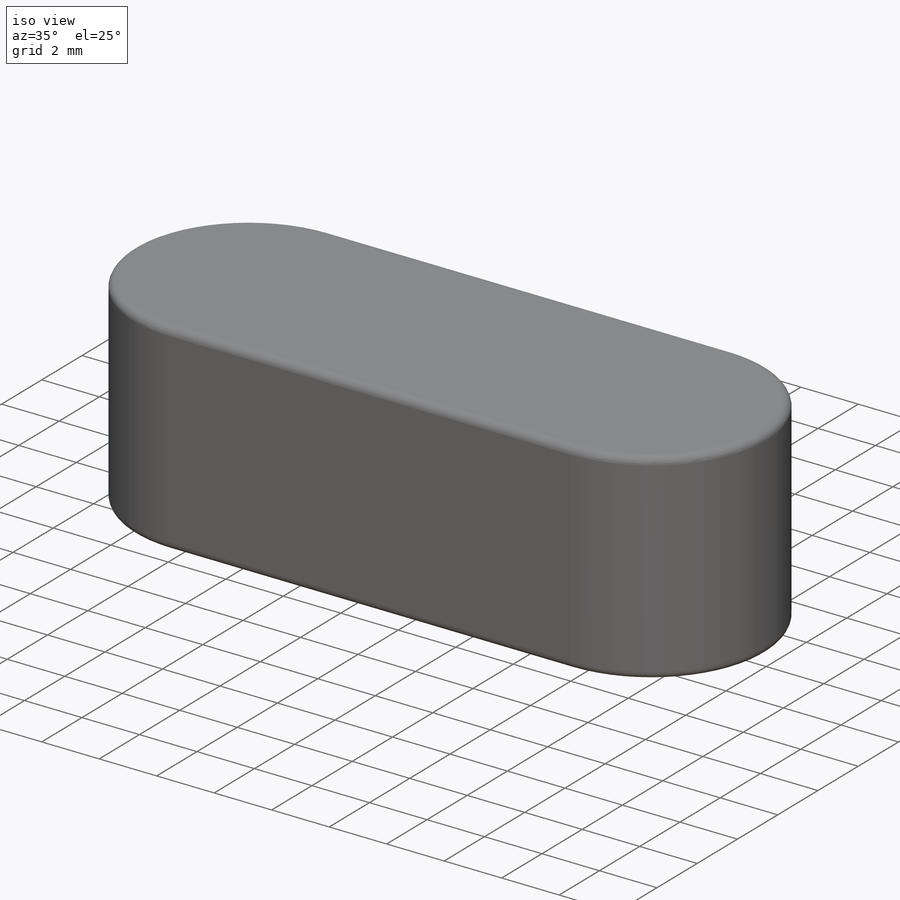
[diagram: iso view]
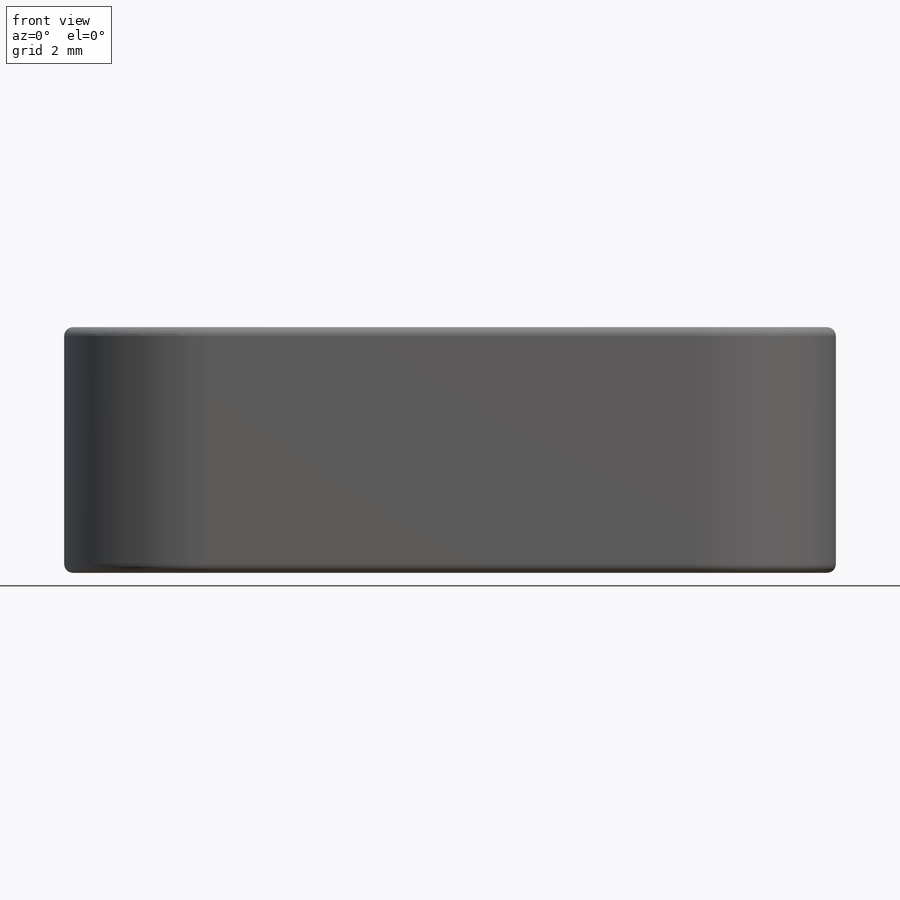
[diagram: front view]
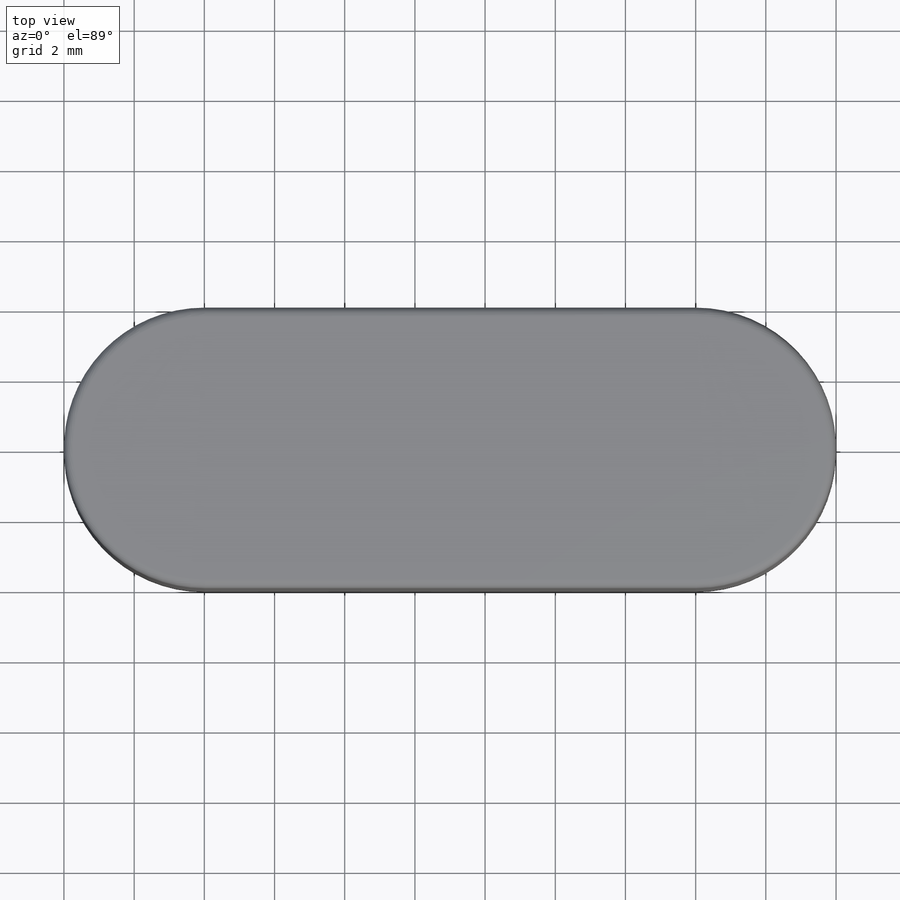
[diagram: top view]
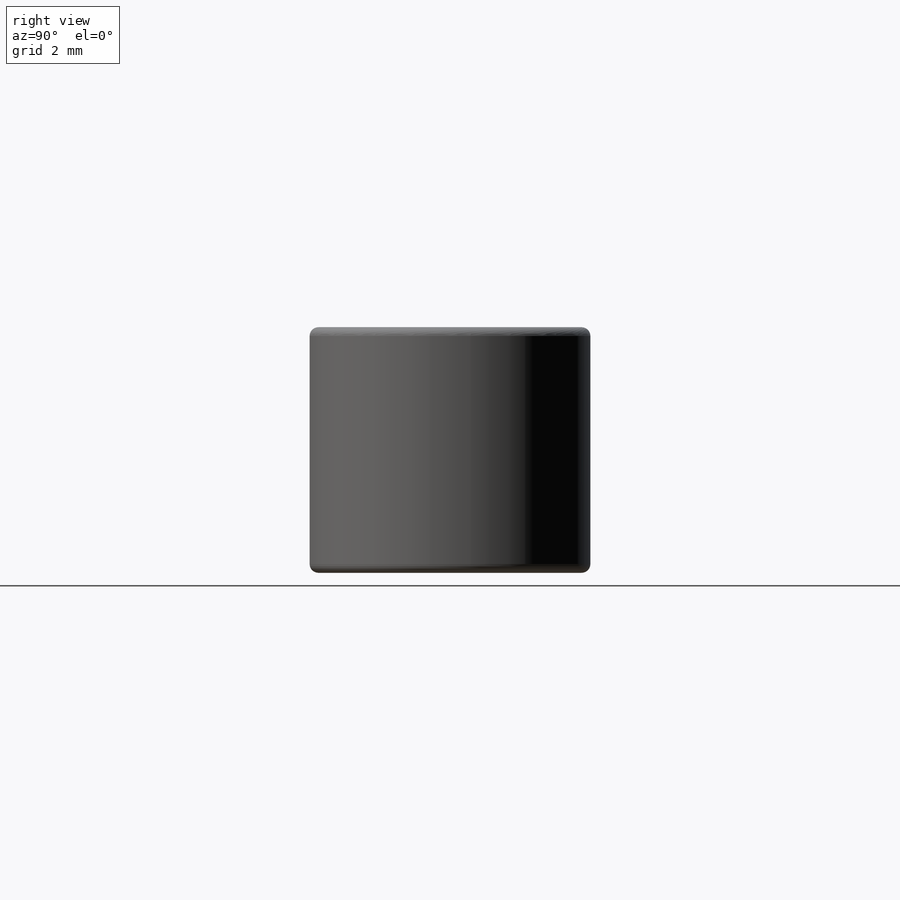
[diagram: right view]
SOLIDWORKS PART (.sldprt)
format: sldprt  version: not decoded by parser v0  size: 126,464 bytes
history: native  units: mm
features: fillet x4, material x1, sketch x1, extrude x1 (+12 scaffold rows collapsed; 1 parser-record rows omitted)
feature tree (20):
  scaffold x12  (default folders/planes/origin — collapsed)
  material  "Материал <не указан>"
  parser-record x1  (decoder bookkeeping rows leaked as tree rows — omitted from the tree; the rows remain in map.json)
  sketch  "Sketch1"  dims[D1=~38.915142mm D3=~38.915142mm l=22.0mm b=8.0mm]
  extrude  "Extrude1"  Depth=7mm h=7mm
  fillet  "Fillet1"  Radius=0.25mm r1=0.25mm
  fillet  "ConfigurationName"  Radius=0 CopiedFlag=0
  fillet  "PartNumberID"  [1 undecoded]
  fillet  "ConfigurationName"  Radius=0 CopiedFlag=0
decode coverage: 5 of 6 modeling features carry decoded parameters
note: ~ marks probable driven/reference dimensions
note: 1 parameter value undecoded
note: suppression state not decoded; provenance and decode notes live in map.json
